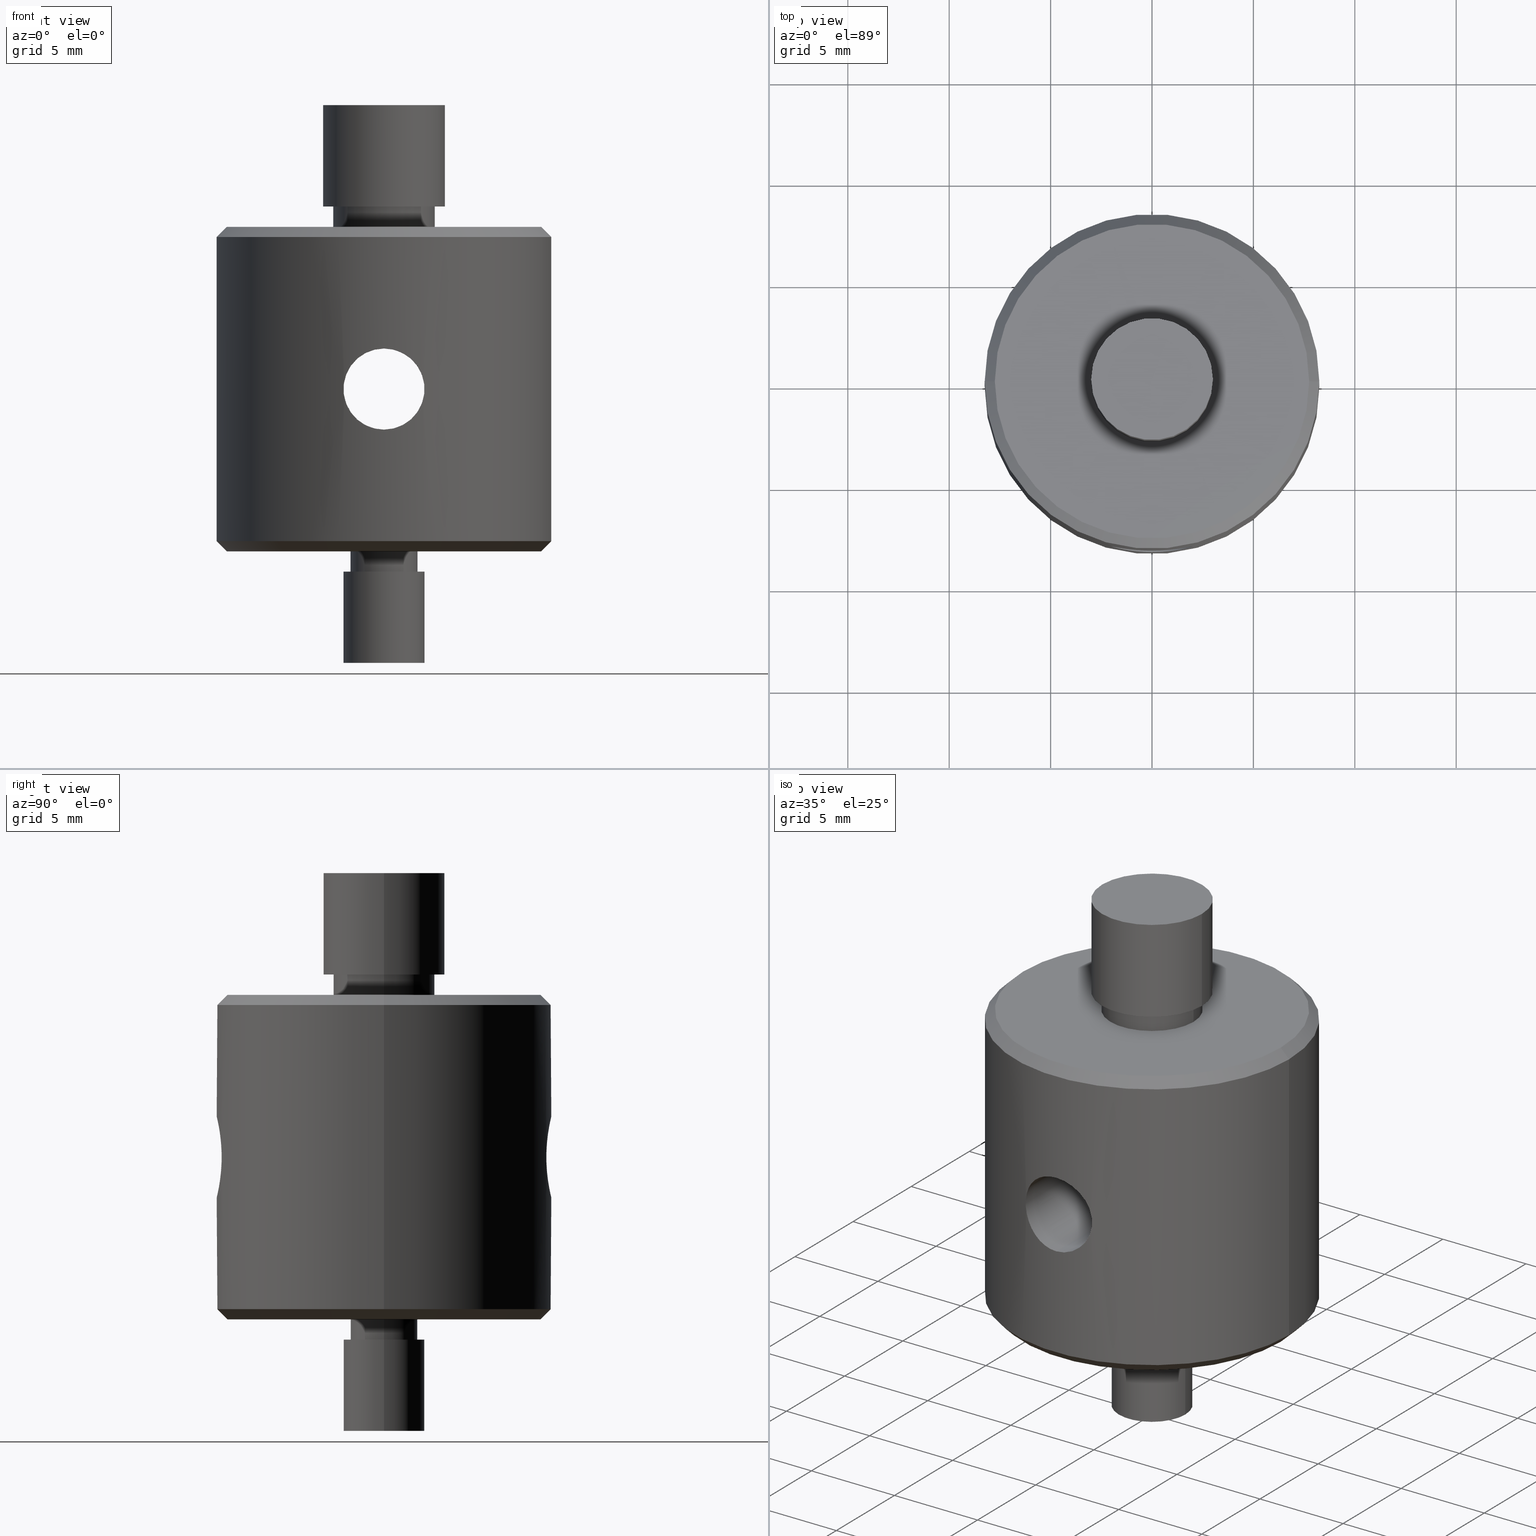
[diagram: canonical four-view strip — front | top / right | iso, engineering-drawing reading convention]
A machine part, canonical four-view strip (front | top / right | iso — engineering-drawing reading convention). The complete STEP part file that produces these views, byte-faithful:
ISO-10303-21;
HEADER;
FILE_DESCRIPTION (( 'STEP AP203' ),
    '1' );
FILE_NAME ('07SRA-3.STEP',
    '2016-04-25T06:19:49',
    ( '' ),
    ( '' ),
    'SwSTEP 2.0',
    'SolidWorks 2016',
    '' );
FILE_SCHEMA (( 'CONFIG_CONTROL_DESIGN' ));
ENDSEC;

DATA;
#1 =( GEOMETRIC_REPRESENTATION_CONTEXT ( 3 ) GLOBAL_UNCERTAINTY_ASSIGNED_CONTEXT ( ( #201 ) ) GLOBAL_UNIT_ASSIGNED_CONTEXT ( ( #126, #609, #417 ) ) REPRESENTATION_CONTEXT ( 'NONE', 'WORKASPACE' ) );
#2 = CARTESIAN_POINT ( 'NONE',  ( -0.1308165397492921700, -8.250000000000001800, -2.000000000000000900 ) ) ;
#3 = DIRECTION ( 'NONE',  ( -0.0000000000000000000, -0.0000000000000000000, 1.000000000000000000 ) ) ;
#4 = CARTESIAN_POINT ( 'NONE',  ( -1.935604370650708500, -8.019765173594350900, -0.5201874762982557900 ) ) ;
#5 = EDGE_CURVE ( 'NONE', #43, #248, #379, .T. ) ;
#6 = FACE_BOUND ( 'NONE', #394, .T. ) ;
#7 = CARTESIAN_POINT ( 'NONE',  ( -1.220416603986454100, -8.159968065346266300, 1.589852038569584200 ) ) ;
#8 = ORIENTED_EDGE ( 'NONE', *, *, #416, .T. ) ;
#9 = CARTESIAN_POINT ( 'NONE',  ( 0.0000000000000000000, 0.0000000000000000000, 8.000000000000000000 ) ) ;
#10 = EDGE_LOOP ( 'NONE', ( #561, #146, #382, #456 ) ) ;
#11 = CARTESIAN_POINT ( 'NONE',  ( -2.000045191572576500, 8.003894004411135300, 0.1312489192629629500 ) ) ;
#12 = DIRECTION ( 'NONE',  ( -1.000000000000000000, 0.0000000000000000000, 0.0000000000000000000 ) ) ;
#13 = CARTESIAN_POINT ( 'NONE',  ( -0.5211225312989512500, -8.234533888799106200, -1.935374489079428200 ) ) ;
#14 = CARTESIAN_POINT ( 'NONE',  ( 0.0000000000000000000, 0.0000000000000000000, 8.000000000000000000 ) ) ;
#15 = SHAPE_DEFINITION_REPRESENTATION ( #232, #699 ) ;
#16 = AXIS2_PLACEMENT_3D ( 'NONE', #130, #202, #132 ) ;
#17 = ORIENTED_EDGE ( 'NONE', *, *, #661, .F. ) ;
#18 = CARTESIAN_POINT ( 'NONE',  ( 2.500000000000000000, 3.061616997868383100E-016, 8.000000000000000000 ) ) ;
#19 = ORIENTED_EDGE ( 'NONE', *, *, #650, .T. ) ;
#20 = EDGE_CURVE ( 'NONE', #484, #277, #220, .T. ) ;
#21 = CARTESIAN_POINT ( 'NONE',  ( -6.789005360349728400E-017, 8.250000000000000000, 2.000000000000000000 ) ) ;
#22 = DIRECTION ( 'NONE',  ( 1.000000000000000000, 0.0000000000000000000, 0.0000000000000000000 ) ) ;
#23 = VECTOR ( 'NONE', #558, 1000.000000000000000 ) ;
#24 = CARTESIAN_POINT ( 'NONE',  ( 0.0000000000000000000, 0.0000000000000000000, 8.000000000000000000 ) ) ;
#25 = EDGE_LOOP ( 'NONE', ( #211, #389, #585, #360 ) ) ;
#26 = DIRECTION ( 'NONE',  ( -0.0000000000000000000, -0.0000000000000000000, -1.000000000000000000 ) ) ;
#27 = AXIS2_PLACEMENT_3D ( 'NONE', #545, #186, #721 ) ;
#28 = CARTESIAN_POINT ( 'NONE',  ( 1.986918607695745900, 8.007206264713762100, -0.2632750207901880000 ) ) ;
#29 = DIRECTION ( 'NONE',  ( 0.0000000000000000000, 0.0000000000000000000, 1.000000000000000000 ) ) ;
#30 = LINE ( 'NONE', #231, #402 ) ;
#31 = APPLICATION_CONTEXT ( 'configuration controlled 3d designs of mechanical parts and assemblies' ) ;
#32 = EDGE_CURVE ( 'NONE', #82, #43, #709, .T. ) ;
#33 = ORIENTED_EDGE ( 'NONE', *, *, #54, .F. ) ;
#34 = ADVANCED_FACE ( 'NONE', ( #359 ), #208, .T. ) ;
#35 = CARTESIAN_POINT ( 'NONE',  ( 1.897658194821841200, 8.028951604041024500, -0.6451074378026309100 ) ) ;
#36 = APPROVAL_STATUS ( 'not_yet_approved' ) ;
#37 = CC_DESIGN_APPROVAL ( #563, ( #553 ) ) ;
#38 = ADVANCED_FACE ( 'NONE', ( #560 ), #504, .T. ) ;
#39 = LOCAL_TIME ( 14, 19, 49.00000000000000000, #164 ) ;
#40 = CARTESIAN_POINT ( 'NONE',  ( 1.936141588103510000, -8.019634998458533600, 0.5181599248321968600 ) ) ;
#41 = CIRCLE ( 'NONE', #67, 1.650000000000000100 ) ;
#42 = VERTEX_POINT ( 'NONE', #437 ) ;
#43 = VERTEX_POINT ( 'NONE', #145 ) ;
#44 = CARTESIAN_POINT ( 'NONE',  ( 1.009530896751481100, -8.191567199673246000, 1.746084158701253200 ) ) ;
#45 = DIRECTION ( 'NONE',  ( -0.0000000000000000000, -0.0000000000000000000, -1.000000000000000000 ) ) ;
#46 = CARTESIAN_POINT ( 'NONE',  ( 8.250000000000000000, 0.0000000000000000000, -7.499999999999996400 ) ) ;
#47 = CIRCLE ( 'NONE', #280, 2.500000000000000000 ) ;
#48 = CYLINDRICAL_SURFACE ( 'NONE', #427, 2.500000000000000000 ) ;
#49 = VECTOR ( 'NONE', #669, 1000.000000000000000 ) ;
#50 = VERTEX_POINT ( 'NONE', #676 ) ;
#51 = AXIS2_PLACEMENT_3D ( 'NONE', #14, #498, #22 ) ;
#52 = DIRECTION ( 'NONE',  ( -0.0000000000000000000, -0.0000000000000000000, 1.000000000000000000 ) ) ;
#53 = CARTESIAN_POINT ( 'NONE',  ( -1.321223466088915300, -8.144060661153183400, -1.507167060968729300 ) ) ;
#54 = EDGE_CURVE ( 'NONE', #457, #426, #160, .T. ) ;
#55 = LOCAL_TIME ( 14, 19, 49.00000000000000000, #218 ) ;
#56 = CARTESIAN_POINT ( 'NONE',  ( 0.0000000000000000000, -10.00000000000000000, 0.0000000000000000000 ) ) ;
#57 = CARTESIAN_POINT ( 'NONE',  ( -1.505833281658624000, 8.111949852566528600, -1.322673550575946600 ) ) ;
#58 = CIRCLE ( 'NONE', #468, 2.000000000000000000 ) ;
#59 = CARTESIAN_POINT ( 'NONE',  ( -3.000000000000000400, 3.673940397442060400E-016, 8.000000000000000000 ) ) ;
#60 = VERTEX_POINT ( 'NONE', #383 ) ;
#61 = CARTESIAN_POINT ( 'NONE',  ( -1.734485429178346700, 8.065947410585693000, -1.004220271036169600 ) ) ;
#62 = DIRECTION ( 'NONE',  ( -0.0000000000000000000, -0.0000000000000000000, 1.000000000000000000 ) ) ;
#63 = CARTESIAN_POINT ( 'NONE',  ( -1.897658194821841200, -8.028951604041024500, -0.6451074378026309100 ) ) ;
#64 = AXIS2_PLACEMENT_3D ( 'NONE', #240, #62, #245 ) ;
#65 = CYLINDRICAL_SURFACE ( 'NONE', #396, 8.250000000000000000 ) ;
#66 = EDGE_LOOP ( 'NONE', ( #168, #300, #236, #247 ) ) ;
#67 = AXIS2_PLACEMENT_3D ( 'NONE', #623, #173, #224 ) ;
#68 = CARTESIAN_POINT ( 'NONE',  ( -0.2633971679137698800, 8.246803913401407700, 1.986932804278705100 ) ) ;
#69 = DATE_AND_TIME ( #500, #93 ) ;
#70 = CC_DESIGN_APPROVAL ( #111, ( #588 ) ) ;
#71 = CARTESIAN_POINT ( 'NONE',  ( 0.0000000000000000000, 0.0000000000000000000, -13.50000000000000000 ) ) ;
#72 = EDGE_LOOP ( 'NONE', ( #237, #614, #686, #370 ) ) ;
#73 = CARTESIAN_POINT ( 'NONE',  ( 0.0000000000000000000, -10.00000000000000000, 0.0000000000000000000 ) ) ;
#74 = CARTESIAN_POINT ( 'NONE',  ( 0.1326415266041785500, -8.250000000000000000, 1.999999999999999600 ) ) ;
#75 = AXIS2_PLACEMENT_3D ( 'NONE', #507, #137, #642 ) ;
#76 = CARTESIAN_POINT ( 'NONE',  ( 0.0000000000000000000, 0.0000000000000000000, -7.499999999999996400 ) ) ;
#77 = APPROVAL_PERSON_ORGANIZATION ( #226, #563, #572 ) ;
#78 = CARTESIAN_POINT ( 'NONE',  ( 0.5193570997923324700, 8.234635984631101000, 1.935806336850731900 ) ) ;
#79 = DIRECTION ( 'NONE',  ( 1.000000000000000000, 0.0000000000000000000, 0.0000000000000000000 ) ) ;
#80 = FACE_BOUND ( 'NONE', #326, .T. ) ;
#81 = CARTESIAN_POINT ( 'NONE',  ( 1.321366810000156500, -8.144031804710421000, -1.506980075174842300 ) ) ;
#82 = VERTEX_POINT ( 'NONE', #512 ) ;
#83 = CARTESIAN_POINT ( 'NONE',  ( 0.8873435543799543800, 8.203037833527066200, -1.797140462901066500 ) ) ;
#84 = ORIENTED_EDGE ( 'NONE', *, *, #305, .F. ) ;
#85 = EDGE_CURVE ( 'NONE', #60, #223, #41, .T. ) ;
#86 = CARTESIAN_POINT ( 'NONE',  ( 0.0000000000000000000, 0.0000000000000000000, -9.000000000000001800 ) ) ;
#87 = ADVANCED_FACE ( 'NONE', ( #297 ), #622, .T. ) ;
#88 = ORIENTED_EDGE ( 'NONE', *, *, #708, .F. ) ;
#89 = CARTESIAN_POINT ( 'NONE',  ( 0.0000000000000000000, 0.0000000000000000000, -9.000000000000001800 ) ) ;
#90 = CARTESIAN_POINT ( 'NONE',  ( 2.500000000000000000, 3.061616997868383100E-016, 9.000000000000001800 ) ) ;
#91 = ADVANCED_FACE ( 'NONE', ( #350 ), #294, .T. ) ;
#92 = PLANE ( 'NONE',  #447 ) ;
#93 = LOCAL_TIME ( 14, 19, 49.00000000000000000, #438 ) ;
#94 = DIRECTION ( 'NONE',  ( 1.000000000000000000, 0.0000000000000000000, 0.0000000000000000000 ) ) ;
#95 = FACE_OUTER_BOUND ( 'NONE', #228, .T. ) ;
#96 = ADVANCED_FACE ( 'NONE', ( #157, #6 ), #92, .T. ) ;
#97 = CARTESIAN_POINT ( 'NONE',  ( 0.0000000000000000000, 0.0000000000000000000, 14.00000000000000000 ) ) ;
#98 = FACE_OUTER_BOUND ( 'NONE', #133, .T. ) ;
#99 = ORIENTED_EDGE ( 'NONE', *, *, #697, .F. ) ;
#100 = VERTEX_POINT ( 'NONE', #534 ) ;
#101 = ORIENTED_EDGE ( 'NONE', *, *, #501, .F. ) ;
#102 = AXIS2_PLACEMENT_3D ( 'NONE', #524, #586, #706 ) ;
#103 = DIRECTION ( 'NONE',  ( -0.0000000000000000000, 1.000000000000000000, -0.0000000000000000000 ) ) ;
#104 = CARTESIAN_POINT ( 'NONE',  ( 7.749999999999989300, 9.797174393178819700E-016, 8.000000000000000000 ) ) ;
#105 = LINE ( 'NONE', #149, #683 ) ;
#106 = ORIENTED_EDGE ( 'NONE', *, *, #166, .T. ) ;
#107 = DIRECTION ( 'NONE',  ( -1.000000000000000000, 0.0000000000000000000, 0.0000000000000000000 ) ) ;
#108 = CARTESIAN_POINT ( 'NONE',  ( -0.8869395704203337800, 8.203076758833363500, -1.797314436934732900 ) ) ;
#109 = VERTEX_POINT ( 'NONE', #356 ) ;
#110 = ORIENTED_EDGE ( 'NONE', *, *, #199, .F. ) ;
#111 = APPROVAL ( #36, 'UNSPECIFIED' ) ;
#112 = PERSON ( 'UNSPECIFIED', 'UNSPECIFIED', 'UNSPECIFIED', ('UNSPECIFIED'), ('UNSPECIFIED'), ('UNSPECIFIED') ) ;
#113 = CARTESIAN_POINT ( 'NONE',  ( 0.0000000000000000000, 0.0000000000000000000, 8.000000000000000000 ) ) ;
#114 = CARTESIAN_POINT ( 'NONE',  ( -1.987161606794385400, 8.007145465530605600, 0.2613861231367247700 ) ) ;
#115 = AXIS2_PLACEMENT_3D ( 'NONE', #24, #397, #565 ) ;
#116 = CARTESIAN_POINT ( 'NONE',  ( 1.650000000000000100, 0.0000000000000000000, -9.000000000000001800 ) ) ;
#117 = CARTESIAN_POINT ( 'NONE',  ( -0.1326771134377834100, -8.250000000000000000, 2.000000000000000000 ) ) ;
#118 = CIRCLE ( 'NONE', #388, 8.250000000000000000 ) ;
#119 = CARTESIAN_POINT ( 'NONE',  ( 0.0000000000000000000, 0.0000000000000000000, -8.000000000000000000 ) ) ;
#120 = ORIENTED_EDGE ( 'NONE', *, *, #5, .F. ) ;
#121 = EDGE_LOOP ( 'NONE', ( #760, #464, #579, #301 ) ) ;
#122 = ORIENTED_EDGE ( 'NONE', *, *, #271, .F. ) ;
#123 = DIRECTION ( 'NONE',  ( 0.0000000000000000000, 0.0000000000000000000, 1.000000000000000000 ) ) ;
#124 = CC_DESIGN_APPROVAL ( #641, ( #296 ) ) ;
#125 = DIRECTION ( 'NONE',  ( 0.0000000000000000000, 0.0000000000000000000, 1.000000000000000000 ) ) ;
#126 =( LENGTH_UNIT ( ) NAMED_UNIT ( * ) SI_UNIT ( .MILLI., .METRE. ) );
#127 = CARTESIAN_POINT ( 'NONE',  ( -6.789005360349728400E-017, 8.250000000000000000, 2.000000000000000000 ) ) ;
#128 = AXIS2_PLACEMENT_3D ( 'NONE', #322, #491, #190 ) ;
#129 = CIRCLE ( 'NONE', #714, 3.000000000000000400 ) ;
#130 = CARTESIAN_POINT ( 'NONE',  ( 0.0000000000000000000, 0.0000000000000000000, -8.000000000000000000 ) ) ;
#131 = VERTEX_POINT ( 'NONE', #104 ) ;
#132 = DIRECTION ( 'NONE',  ( -1.000000000000000000, 0.0000000000000000000, -0.0000000000000000000 ) ) ;
#133 = EDGE_LOOP ( 'NONE', ( #741, #341, #143, #101 ) ) ;
#134 = EDGE_CURVE ( 'NONE', #551, #131, #495, .T. ) ;
#135 = DIRECTION ( 'NONE',  ( 0.0000000000000000000, 0.0000000000000000000, -1.000000000000000000 ) ) ;
#136 = CARTESIAN_POINT ( 'NONE',  ( -0.6485373955294846400, 8.225357481663911200, 1.896415006476869200 ) ) ;
#137 = DIRECTION ( 'NONE',  ( 0.0000000000000000000, 0.0000000000000000000, 1.000000000000000000 ) ) ;
#138 = CARTESIAN_POINT ( 'NONE',  ( 0.0000000000000000000, 0.0000000000000000000, 9.000000000000001800 ) ) ;
#139 = CALENDAR_DATE ( 2016, 25, 4 ) ;
#140 = CARTESIAN_POINT ( 'NONE',  ( 1.505833281658624000, -8.111949852566528600, -1.322673550575946600 ) ) ;
#141 = FACE_OUTER_BOUND ( 'NONE', #195, .T. ) ;
#142 = CIRCLE ( 'NONE', #411, 7.749999999999991100 ) ;
#143 = ORIENTED_EDGE ( 'NONE', *, *, #380, .T. ) ;
#144 = ORIENTED_EDGE ( 'NONE', *, *, #750, .T. ) ;
#145 = CARTESIAN_POINT ( 'NONE',  ( -8.250000000000000000, 1.010333609296566500E-015, -7.499999999999996400 ) ) ;
#146 = ORIENTED_EDGE ( 'NONE', *, *, #134, .F. ) ;
#147 = DIRECTION ( 'NONE',  ( -1.000000000000000000, 0.0000000000000000000, 0.0000000000000000000 ) ) ;
#148 = PERSON_AND_ORGANIZATION_ROLE ( 'creator' ) ;
#149 = CARTESIAN_POINT ( 'NONE',  ( -2.000000000000000000, 0.0000000000000000000, -8.000000000000000000 ) ) ;
#150 = AXIS2_PLACEMENT_3D ( 'NONE', #73, #377, #378 ) ;
#151 = CARTESIAN_POINT ( 'NONE',  ( 1.599357376057809300, 8.095676499416024200, -1.229142779217262900 ) ) ;
#152 = CARTESIAN_POINT ( 'NONE',  ( 1.746564404702779300, 8.063665092118787600, -1.009254032915539300 ) ) ;
#153 = CARTESIAN_POINT ( 'NONE',  ( 0.0000000000000000000, 0.0000000000000000000, 0.0000000000000000000 ) ) ;
#154 = AXIS2_PLACEMENT_3D ( 'NONE', #76, #325, #694 ) ;
#155 = CARTESIAN_POINT ( 'NONE',  ( 0.0000000000000000000, 0.0000000000000000000, 9.000000000000001800 ) ) ;
#156 = CYLINDRICAL_SURFACE ( 'NONE', #162, 2.500000000000000000 ) ;
#157 = FACE_OUTER_BOUND ( 'NONE', #675, .T. ) ;
#158 = ORIENTED_EDGE ( 'NONE', *, *, #363, .F. ) ;
#159 = ORIENTED_EDGE ( 'NONE', *, *, #282, .T. ) ;
#160 = B_SPLINE_CURVE_WITH_KNOTS ( 'NONE', 3,
 ( #567, #571, #385, #163, #522, #203, #81, #140, #562, #281, #259, #330, #629, #342, #628, #40, #754, #398, #268, #264, #44, #735, #742, #200, #74, #502 ),
 .UNSPECIFIED., .F., .F.,
 ( 4, 2, 2, 2, 2, 2, 2, 2, 2, 2, 2, 2, 4 ),
 ( 0.006276366173216329500, 0.007060701512947540300, 0.007452869182813145700, 0.007845036852678751900, 0.008237204522544356400, 0.008629372192409962700, 0.009413707532141171700, 0.009805875202006778000, 0.01019804287187238200, 0.01098237821160359300, 0.01176671355133480600, 0.01215888122120041000, 0.01255104889106601500 ),
 .UNSPECIFIED. ) ;
#161 = PERSON_AND_ORGANIZATION_ROLE ( 'design_supplier' ) ;
#162 = AXIS2_PLACEMENT_3D ( 'NONE', #555, #258, #251 ) ;
#163 = CARTESIAN_POINT ( 'NONE',  ( 0.8869395704203337800, -8.203076758833363500, -1.797314436934732900 ) ) ;
#164 = COORDINATED_UNIVERSAL_TIME_OFFSET ( 8, 0, .AHEAD. ) ;
#165 = ORIENTED_EDGE ( 'NONE', *, *, #380, .F. ) ;
#166 = EDGE_CURVE ( 'NONE', #462, #42, #308, .T. ) ;
#167 = CARTESIAN_POINT ( 'NONE',  ( 0.0000000000000000000, 0.0000000000000000000, 8.000000000000000000 ) ) ;
#168 = ORIENTED_EDGE ( 'NONE', *, *, #257, .T. ) ;
#169 = ORIENTED_EDGE ( 'NONE', *, *, #592, .T. ) ;
#170 = DIRECTION ( 'NONE',  ( 1.000000000000000000, 0.0000000000000000000, 0.0000000000000000000 ) ) ;
#171 = DIRECTION ( 'NONE',  ( 0.0000000000000000000, 0.0000000000000000000, 1.000000000000000000 ) ) ;
#172 = FACE_BOUND ( 'NONE', #312, .T. ) ;
#173 = DIRECTION ( 'NONE',  ( 0.0000000000000000000, 0.0000000000000000000, -1.000000000000000000 ) ) ;
#174 = VECTOR ( 'NONE', #618, 1000.000000000000000 ) ;
#175 = AXIS2_PLACEMENT_3D ( 'NONE', #477, #291, #107 ) ;
#176 = VERTEX_POINT ( 'NONE', #46 ) ;
#177 = CARTESIAN_POINT ( 'NONE',  ( 0.0000000000000000000, 0.0000000000000000000, -8.000000000000000000 ) ) ;
#178 = CARTESIAN_POINT ( 'NONE',  ( -0.5193570997923324700, -8.234635984631101000, 1.935806336850731900 ) ) ;
#179 = EDGE_CURVE ( 'NONE', #593, #719, #318, .T. ) ;
#180 = CARTESIAN_POINT ( 'NONE',  ( 3.000000000000000400, 0.0000000000000000000, 14.00000000000000000 ) ) ;
#181 = CARTESIAN_POINT ( 'NONE',  ( -1.003367067051843800, -8.189490218781173800, 1.735021821357147600 ) ) ;
#182 = CARTESIAN_POINT ( 'NONE',  ( -1.897368781442408500, 8.029017936759030900, 0.6457941285481596500 ) ) ;
#183 = ORIENTED_EDGE ( 'NONE', *, *, #399, .F. ) ;
#184 = ORIENTED_EDGE ( 'NONE', *, *, #327, .F. ) ;
#185 = CARTESIAN_POINT ( 'NONE',  ( -0.2615629039225235700, 8.250000000000000000, -2.000000000000000400 ) ) ;
#186 = DIRECTION ( 'NONE',  ( 0.0000000000000000000, 0.0000000000000000000, -1.000000000000000000 ) ) ;
#187 = CARTESIAN_POINT ( 'NONE',  ( -1.599357376057809300, -8.095676499416024200, -1.229142779217262900 ) ) ;
#188 = AXIS2_PLACEMENT_3D ( 'NONE', #113, #246, #539 ) ;
#189 = DIRECTION ( 'NONE',  ( 0.0000000000000000000, 0.0000000000000000000, -1.000000000000000000 ) ) ;
#190 = DIRECTION ( 'NONE',  ( -1.000000000000000000, 0.0000000000000000000, 0.0000000000000000000 ) ) ;
#191 = CIRCLE ( 'NONE', #497, 1.650000000000000100 ) ;
#192 = FACE_OUTER_BOUND ( 'NONE', #517, .T. ) ;
#193 = ORIENTED_EDGE ( 'NONE', *, *, #20, .F. ) ;
#194 = AXIS2_PLACEMENT_3D ( 'NONE', #292, #467, #409 ) ;
#195 = EDGE_LOOP ( 'NONE', ( #540, #486 ) ) ;
#196 = CARTESIAN_POINT ( 'NONE',  ( -1.650000000000000100, 2.020667218593133000E-016, -8.000000000000000000 ) ) ;
#197 = ORIENTED_EDGE ( 'NONE', *, *, #20, .T. ) ;
#198 = DIRECTION ( 'NONE',  ( -0.0000000000000000000, -0.0000000000000000000, -1.000000000000000000 ) ) ;
#199 = EDGE_CURVE ( 'NONE', #587, #758, #660, .T. ) ;
#200 = CARTESIAN_POINT ( 'NONE',  ( 0.2633971679137698800, -8.246803913401407700, 1.986932804278705100 ) ) ;
#201 = UNCERTAINTY_MEASURE_WITH_UNIT (LENGTH_MEASURE( 1.000000000000000100E-005 ), #126, 'distance_accuracy_value', 'NONE');
#202 = DIRECTION ( 'NONE',  ( 0.0000000000000000000, 0.0000000000000000000, -1.000000000000000000 ) ) ;
#203 = CARTESIAN_POINT ( 'NONE',  ( 1.221030223150371400, -8.159876887627760300, -1.589387696022922700 ) ) ;
#204 = DIRECTION ( 'NONE',  ( 0.0000000000000000000, 0.0000000000000000000, -1.000000000000000000 ) ) ;
#205 = FACE_OUTER_BOUND ( 'NONE', #475, .T. ) ;
#206 = PRODUCT_RELATED_PRODUCT_CATEGORY ( 'detail', '', ( #488 ) ) ;
#207 = CARTESIAN_POINT ( 'NONE',  ( 1.004520203861529100, 8.189343423344858800, -1.734320818487681500 ) ) ;
#208 = CONICAL_SURFACE ( 'NONE', #154, 8.250000000000000000, 0.7853981633974533900 ) ;
#209 = DIRECTION ( 'NONE',  ( 1.000000000000000000, 0.0000000000000000000, 0.0000000000000000000 ) ) ;
#210 = ORIENTED_EDGE ( 'NONE', *, *, #501, .T. ) ;
#211 = ORIENTED_EDGE ( 'NONE', *, *, #442, .F. ) ;
#212 = CARTESIAN_POINT ( 'NONE',  ( 0.2635999258944435300, 8.246795264675656200, -1.986896621537046000 ) ) ;
#213 = ADVANCED_FACE ( 'NONE', ( #339 ), #454, .T. ) ;
#214 = DIRECTION ( 'NONE',  ( 0.0000000000000000000, 0.0000000000000000000, 1.000000000000000000 ) ) ;
#215 = DIRECTION ( 'NONE',  ( -0.0000000000000000000, -0.0000000000000000000, -1.000000000000000000 ) ) ;
#216 = CC_DESIGN_PERSON_AND_ORGANIZATION_ASSIGNMENT ( #557, #148, ( #588 ) ) ;
#217 = PERSON_AND_ORGANIZATION_ROLE ( 'design_owner' ) ;
#218 = COORDINATED_UNIVERSAL_TIME_OFFSET ( 8, 0, .AHEAD. ) ;
#219 = FACE_OUTER_BOUND ( 'NONE', #121, .T. ) ;
#220 = LINE ( 'NONE', #90, #521 ) ;
#221 = ADVANCED_FACE ( 'NONE', ( #431 ), #613, .T. ) ;
#222 = ORIENTED_EDGE ( 'NONE', *, *, #282, .F. ) ;
#223 = VERTEX_POINT ( 'NONE', #470 ) ;
#224 = DIRECTION ( 'NONE',  ( -1.000000000000000000, 0.0000000000000000000, 0.0000000000000000000 ) ) ;
#225 = DIRECTION ( 'NONE',  ( 1.000000000000000000, 0.0000000000000000000, 0.0000000000000000000 ) ) ;
#226 = PERSON_AND_ORGANIZATION ( #112, #284 ) ;
#227 = AXIS2_PLACEMENT_3D ( 'NONE', #496, #324, #725 ) ;
#228 = EDGE_LOOP ( 'NONE', ( #290, #654, #159, #643 ) ) ;
#229 = CARTESIAN_POINT ( 'NONE',  ( -8.250000000000000000, 1.010333609296566500E-015, 7.499999999999998200 ) ) ;
#230 = EDGE_CURVE ( 'NONE', #625, #277, #748, .T. ) ;
#231 = CARTESIAN_POINT ( 'NONE',  ( 2.000000000000000000, 2.449293598294706400E-016, -8.000000000000000000 ) ) ;
#232 = PRODUCT_DEFINITION_SHAPE ( 'NONE', 'NONE',  #553 ) ;
#233 = APPROVAL_PERSON_ORGANIZATION ( #583, #641, #687 ) ;
#234 = CARTESIAN_POINT ( 'NONE',  ( -0.8886708092414188400, -8.202897855306337900, 1.796506368153792900 ) ) ;
#235 = FACE_OUTER_BOUND ( 'NONE', #66, .T. ) ;
#236 = ORIENTED_EDGE ( 'NONE', *, *, #271, .T. ) ;
#237 = ORIENTED_EDGE ( 'NONE', *, *, #724, .F. ) ;
#238 = DIRECTION ( 'NONE',  ( -1.000000000000000000, 0.0000000000000000000, -0.0000000000000000000 ) ) ;
#239 = CARTESIAN_POINT ( 'NONE',  ( -1.747129177818576000, -8.063531605375777300, 1.007640096485658400 ) ) ;
#240 = CARTESIAN_POINT ( 'NONE',  ( 0.0000000000000000000, 0.0000000000000000000, -7.499999999999996400 ) ) ;
#241 = CARTESIAN_POINT ( 'NONE',  ( -1.231581452474026900, 8.159680445255538900, 1.597060228483784700 ) ) ;
#242 = DIRECTION ( 'NONE',  ( 1.000000000000000000, 0.0000000000000000000, 0.0000000000000000000 ) ) ;
#243 = CARTESIAN_POINT ( 'NONE',  ( 2.449308039802920400E-016, -8.250000000000000000, -2.000000000000000000 ) ) ;
#244 = DATE_AND_TIME ( #139, #39 ) ;
#245 = DIRECTION ( 'NONE',  ( 1.000000000000000000, 0.0000000000000000000, 0.0000000000000000000 ) ) ;
#246 = DIRECTION ( 'NONE',  ( 0.0000000000000000000, 0.0000000000000000000, 1.000000000000000000 ) ) ;
#247 = ORIENTED_EDGE ( 'NONE', *, *, #416, .F. ) ;
#248 = VERTEX_POINT ( 'NONE', #229 ) ;
#249 = CARTESIAN_POINT ( 'NONE',  ( 8.250000000000000000, 0.0000000000000000000, -7.499999999999996400 ) ) ;
#250 = DIRECTION ( 'NONE',  ( 0.0000000000000000000, 0.0000000000000000000, 1.000000000000000000 ) ) ;
#251 = DIRECTION ( 'NONE',  ( -1.000000000000000000, 0.0000000000000000000, 0.0000000000000000000 ) ) ;
#252 = CC_DESIGN_PERSON_AND_ORGANIZATION_ASSIGNMENT ( #544, #161, ( #588 ) ) ;
#253 = CARTESIAN_POINT ( 'NONE',  ( -7.749999999999989300, 0.0000000000000000000, 8.000000000000000000 ) ) ;
#254 = LOCAL_TIME ( 14, 19, 49.00000000000000000, #576 ) ;
#255 = PLANE ( 'NONE',  #478 ) ;
#256 = ORIENTED_EDGE ( 'NONE', *, *, #673, .T. ) ;
#257 = EDGE_CURVE ( 'NONE', #426, #457, #621, .T. ) ;
#258 = DIRECTION ( 'NONE',  ( 0.0000000000000000000, 0.0000000000000000000, -1.000000000000000000 ) ) ;
#259 = CARTESIAN_POINT ( 'NONE',  ( 1.796101587691693500, -8.052279829401907600, -0.8895820937560504600 ) ) ;
#260 = CC_DESIGN_SECURITY_CLASSIFICATION ( #296, ( #588 ) ) ;
#261 = DIRECTION ( 'NONE',  ( -0.0000000000000000000, -0.0000000000000000000, 1.000000000000000000 ) ) ;
#262 = CIRCLE ( 'NONE', #175, 8.250000000000000000 ) ;
#263 = PERSON_AND_ORGANIZATION_ROLE ( 'classification_officer' ) ;
#264 = CARTESIAN_POINT ( 'NONE',  ( 1.231581452474026900, -8.159680445255538900, 1.597060228483784700 ) ) ;
#265 = EDGE_LOOP ( 'NONE', ( #184, #310, #165, #328 ) ) ;
#266 = ORIENTED_EDGE ( 'NONE', *, *, #556, .T. ) ;
#267 = AXIS2_PLACEMENT_3D ( 'NONE', #533, #298, #302 ) ;
#268 = CARTESIAN_POINT ( 'NONE',  ( 1.598501874800889500, -8.095799503385800100, 1.229709723365947300 ) ) ;
#269 = CARTESIAN_POINT ( 'NONE',  ( 0.5211225312989512500, 8.234533888799106200, -1.935374489079428200 ) ) ;
#270 = MECHANICAL_CONTEXT ( 'NONE', #31, 'mechanical' ) ;
#271 = EDGE_CURVE ( 'NONE', #278, #309, #316, .T. ) ;
#272 = PERSON_AND_ORGANIZATION ( #112, #284 ) ;
#273 = CARTESIAN_POINT ( 'NONE',  ( 7.749999999999991100, 0.0000000000000000000, -8.000000000000000000 ) ) ;
#274 = FACE_OUTER_BOUND ( 'NONE', #414, .T. ) ;
#275 = ADVANCED_FACE ( 'NONE', ( #529 ), #559, .T. ) ;
#276 = DIRECTION ( 'NONE',  ( 0.0000000000000000000, 0.0000000000000000000, 1.000000000000000000 ) ) ;
#277 = VERTEX_POINT ( 'NONE', #18 ) ;
#278 = VERTEX_POINT ( 'NONE', #606 ) ;
#279 = CARTESIAN_POINT ( 'NONE',  ( 2.449308039802920400E-016, -8.250000000000000000, -2.000000000000000000 ) ) ;
#280 = AXIS2_PLACEMENT_3D ( 'NONE', #384, #616, #439 ) ;
#281 = CARTESIAN_POINT ( 'NONE',  ( 1.734485429178346700, -8.065947410585693000, -1.004220271036169600 ) ) ;
#282 = EDGE_CURVE ( 'NONE', #695, #176, #369, .T. ) ;
#283 = CARTESIAN_POINT ( 'NONE',  ( 2.000000000000000000, 2.449293598294706400E-016, -9.000000000000001800 ) ) ;
#284 = ORGANIZATION ( 'UNSPECIFIED', 'UNSPECIFIED', '' ) ;
#285 = CARTESIAN_POINT ( 'NONE',  ( 0.0000000000000000000, 0.0000000000000000000, 8.000000000000000000 ) ) ;
#286 = LINE ( 'NONE', #364, #740 ) ;
#287 = ORIENTED_EDGE ( 'NONE', *, *, #257, .F. ) ;
#288 = ORIENTED_EDGE ( 'NONE', *, *, #399, .T. ) ;
#289 = ADVANCED_FACE ( 'NONE', ( #332 ), #156, .T. ) ;
#290 = ORIENTED_EDGE ( 'NONE', *, *, #32, .F. ) ;
#291 = DIRECTION ( 'NONE',  ( -0.0000000000000000000, -0.0000000000000000000, 1.000000000000000000 ) ) ;
#292 = CARTESIAN_POINT ( 'NONE',  ( 0.0000000000000000000, 0.0000000000000000000, -8.000000000000000000 ) ) ;
#293 = DIRECTION ( 'NONE',  ( -1.000000000000000000, 0.0000000000000000000, 0.0000000000000000000 ) ) ;
#294 = PLANE ( 'NONE',  #604 ) ;
#295 = CIRCLE ( 'NONE', #670, 2.500000000000000000 ) ;
#296 = SECURITY_CLASSIFICATION ( '', '', #580 ) ;
#297 = FACE_OUTER_BOUND ( 'NONE', #664, .T. ) ;
#298 = DIRECTION ( 'NONE',  ( 0.0000000000000000000, 0.0000000000000000000, 1.000000000000000000 ) ) ;
#299 = DIRECTION ( 'NONE',  ( 0.0000000000000000000, 0.0000000000000000000, 1.000000000000000000 ) ) ;
#300 = ORIENTED_EDGE ( 'NONE', *, *, #708, .T. ) ;
#301 = ORIENTED_EDGE ( 'NONE', *, *, #556, .F. ) ;
#302 = DIRECTION ( 'NONE',  ( 1.000000000000000000, 0.0000000000000000000, -0.0000000000000000000 ) ) ;
#303 = CARTESIAN_POINT ( 'NONE',  ( -0.6466695324974537400, -8.225514424492038400, 1.897100275092082700 ) ) ;
#304 = DESIGN_CONTEXT ( 'detailed design', #334, 'design' ) ;
#305 = EDGE_CURVE ( 'NONE', #719, #593, #684, .T. ) ;
#306 = APPROVAL_DATE_TIME ( #680, #641 ) ;
#307 = LINE ( 'NONE', #59, #763 ) ;
#308 = CIRCLE ( 'NONE', #530, 2.000000000000000000 ) ;
#309 = VERTEX_POINT ( 'NONE', #375 ) ;
#310 = ORIENTED_EDGE ( 'NONE', *, *, #541, .T. ) ;
#311 = CARTESIAN_POINT ( 'NONE',  ( -1.947787641228585300, 8.017442781952535600, -0.5248544217563377900 ) ) ;
#312 = EDGE_LOOP ( 'NONE', ( #605, #387 ) ) ;
#313 = CARTESIAN_POINT ( 'NONE',  ( -1.598332908652791100, -8.095838505945714300, 1.229985968183118200 ) ) ;
#314 = CC_DESIGN_PERSON_AND_ORGANIZATION_ASSIGNMENT ( #272, #217, ( #488 ) ) ;
#315 = DIRECTION ( 'NONE',  ( -0.7071067811865536800, 0.0000000000000000000, -0.7071067811865414700 ) ) ;
#316 = B_SPLINE_CURVE_WITH_KNOTS ( 'NONE', 3,
 ( #713, #185, #362, #108, #656, #415, #658, #57, #418, #61, #480, #311, #365, #11, #114, #542, #182, #420, #599, #241, #423, #136, #552, #68, #732, #127 ),
 .UNSPECIFIED., .F., .F.,
 ( 4, 2, 2, 2, 2, 2, 2, 2, 2, 2, 2, 2, 4 ),
 ( 0.006276366173216329500, 0.007060701512947540300, 0.007452869182813145700, 0.007845036852678751900, 0.008237204522544356400, 0.008629372192409962700, 0.009413707532141171700, 0.009805875202006778000, 0.01019804287187238200, 0.01098237821160359300, 0.01176671355133480600, 0.01215888122120041000, 0.01255104889106601500 ),
 .UNSPECIFIED. ) ;
#317 = CIRCLE ( 'NONE', #707, 3.000000000000000400 ) ;
#318 = CIRCLE ( 'NONE', #573, 3.000000000000000400 ) ;
#319 = ORIENTED_EDGE ( 'NONE', *, *, #636, .F. ) ;
#320 = DIRECTION ( 'NONE',  ( -0.0000000000000000000, -0.0000000000000000000, -1.000000000000000000 ) ) ;
#321 = ORIENTED_EDGE ( 'NONE', *, *, #474, .F. ) ;
#322 = CARTESIAN_POINT ( 'NONE',  ( 0.0000000000000000000, 0.0000000000000000000, 7.499999999999998200 ) ) ;
#323 = AXIS2_PLACEMENT_3D ( 'NONE', #705, #653, #238 ) ;
#324 = DIRECTION ( 'NONE',  ( -0.0000000000000000000, -0.0000000000000000000, -1.000000000000000000 ) ) ;
#325 = DIRECTION ( 'NONE',  ( -0.0000000000000000000, -0.0000000000000000000, 1.000000000000000000 ) ) ;
#326 = EDGE_LOOP ( 'NONE', ( #319, #122 ) ) ;
#327 = EDGE_CURVE ( 'NONE', #131, #551, #393, .T. ) ;
#328 = ORIENTED_EDGE ( 'NONE', *, *, #519, .F. ) ;
#329 = APPROVAL_STATUS ( 'not_yet_approved' ) ;
#330 = CARTESIAN_POINT ( 'NONE',  ( 1.947787641228585300, -8.017442781952535600, -0.5248544217563377900 ) ) ;
#331 = PLANE ( 'NONE',  #323 ) ;
#332 = FACE_OUTER_BOUND ( 'NONE', #693, .T. ) ;
#333 = CARTESIAN_POINT ( 'NONE',  ( 2.449279156765281000E-016, 8.250000000000000000, -2.000000000000000000 ) ) ;
#334 = APPLICATION_CONTEXT ( 'configuration controlled 3d designs of mechanical parts and assemblies' ) ;
#335 = CARTESIAN_POINT ( 'NONE',  ( 1.747129177818576000, 8.063531605375777300, 1.007640096485658400 ) ) ;
#336 = DATE_TIME_ROLE ( 'creation_date' ) ;
#337 = ADVANCED_FACE ( 'NONE', ( #349 ), #403, .T. ) ;
#338 = LOCAL_TIME ( 14, 19, 49.00000000000000000, #392 ) ;
#339 = FACE_OUTER_BOUND ( 'NONE', #265, .T. ) ;
#340 = ADVANCED_FACE ( 'NONE', ( #80, #98 ), #65, .T. ) ;
#341 = ORIENTED_EDGE ( 'NONE', *, *, #5, .T. ) ;
#342 = CARTESIAN_POINT ( 'NONE',  ( 2.000045191572576500, -8.003894004411135300, 0.1312489192629629500 ) ) ;
#343 = ADVANCED_FACE ( 'NONE', ( #235 ), #612, .F. ) ;
#344 = CARTESIAN_POINT ( 'NONE',  ( -2.500000000000000000, 0.0000000000000000000, 9.000000000000001800 ) ) ;
#345 = DIRECTION ( 'NONE',  ( 0.0000000000000000000, 0.0000000000000000000, 1.000000000000000000 ) ) ;
#346 = CC_DESIGN_DATE_AND_TIME_ASSIGNMENT ( #726, #336, ( #553 ) ) ;
#347 = CIRCLE ( 'NONE', #630, 2.000000000000000000 ) ;
#348 = DIRECTION ( 'NONE',  ( -0.0000000000000000000, 1.000000000000000000, -0.0000000000000000000 ) ) ;
#349 = FACE_OUTER_BOUND ( 'NONE', #72, .T. ) ;
#350 = FACE_OUTER_BOUND ( 'NONE', #406, .T. ) ;
#351 = ORIENTED_EDGE ( 'NONE', *, *, #492, .F. ) ;
#352 = ORIENTED_EDGE ( 'NONE', *, *, #179, .T. ) ;
#353 = DIRECTION ( 'NONE',  ( 1.000000000000000000, 0.0000000000000000000, -0.0000000000000000000 ) ) ;
#354 = EDGE_CURVE ( 'NONE', #484, #50, #295, .T. ) ;
#355 = DIRECTION ( 'NONE',  ( -1.000000000000000000, 0.0000000000000000000, 0.0000000000000000000 ) ) ;
#356 = CARTESIAN_POINT ( 'NONE',  ( -3.000000000000000400, 3.673940397442060400E-016, 9.000000000000001800 ) ) ;
#357 = CARTESIAN_POINT ( 'NONE',  ( -1.004520203861529100, -8.189343423344858800, -1.734320818487681500 ) ) ;
#358 = APPROVAL_DATE_TIME ( #657, #111 ) ;
#359 = FACE_OUTER_BOUND ( 'NONE', #531, .T. ) ;
#360 = ORIENTED_EDGE ( 'NONE', *, *, #428, .F. ) ;
#361 = ORIENTED_EDGE ( 'NONE', *, *, #230, .T. ) ;
#362 = CARTESIAN_POINT ( 'NONE',  ( -0.5256441293576987700, 8.236790558271446000, -1.947229364106093600 ) ) ;
#363 = EDGE_CURVE ( 'NONE', #223, #587, #538, .T. ) ;
#364 = CARTESIAN_POINT ( 'NONE',  ( 8.250000000000000000, 0.0000000000000000000, -13.50000000000000000 ) ) ;
#365 = CARTESIAN_POINT ( 'NONE',  ( -1.999909263040937000, 8.003927969961225100, -0.2645583643814337600 ) ) ;
#366 = DIRECTION ( 'NONE',  ( -0.0000000000000000000, -0.0000000000000000000, 1.000000000000000000 ) ) ;
#367 = CARTESIAN_POINT ( 'NONE',  ( 1.650000000000000100, 0.0000000000000000000, -8.000000000000000000 ) ) ;
#368 = CARTESIAN_POINT ( 'NONE',  ( -1.220760633113353400, -8.159911152830549200, -1.589551200196607200 ) ) ;
#369 = LINE ( 'NONE', #249, #49 ) ;
#370 = ORIENTED_EDGE ( 'NONE', *, *, #607, .F. ) ;
#371 = DIRECTION ( 'NONE',  ( -1.000000000000000000, 0.0000000000000000000, 0.0000000000000000000 ) ) ;
#372 = DIRECTION ( 'NONE',  ( 0.0000000000000000000, 0.0000000000000000000, 1.000000000000000000 ) ) ;
#373 = ORIENTED_EDGE ( 'NONE', *, *, #492, .T. ) ;
#374 = CARTESIAN_POINT ( 'NONE',  ( 0.0000000000000000000, 0.0000000000000000000, -13.50000000000000000 ) ) ;
#375 = CARTESIAN_POINT ( 'NONE',  ( -6.789005360349728400E-017, 8.250000000000000000, 2.000000000000000000 ) ) ;
#376 = CC_DESIGN_PERSON_AND_ORGANIZATION_ASSIGNMENT ( #479, #626, ( #553 ) ) ;
#377 = DIRECTION ( 'NONE',  ( -0.0000000000000000000, 1.000000000000000000, -0.0000000000000000000 ) ) ;
#378 = DIRECTION ( 'NONE',  ( 0.0000000000000000000, 0.0000000000000000000, 1.000000000000000000 ) ) ;
#379 = LINE ( 'NONE', #429, #578 ) ;
#380 = EDGE_CURVE ( 'NONE', #248, #100, #430, .T. ) ;
#381 = DIRECTION ( 'NONE',  ( 0.0000000000000000000, 0.0000000000000000000, 1.000000000000000000 ) ) ;
#382 = ORIENTED_EDGE ( 'NONE', *, *, #519, .T. ) ;
#383 = CARTESIAN_POINT ( 'NONE',  ( 1.650000000000000100, 0.0000000000000000000, -9.000000000000001800 ) ) ;
#384 = CARTESIAN_POINT ( 'NONE',  ( 0.0000000000000000000, 0.0000000000000000000, 8.000000000000000000 ) ) ;
#385 = CARTESIAN_POINT ( 'NONE',  ( 0.5256441293576987700, -8.236790558271446000, -1.947229364106093600 ) ) ;
#386 = CARTESIAN_POINT ( 'NONE',  ( 1.598332908652791100, 8.095838505945714300, 1.229985968183118200 ) ) ;
#387 = ORIENTED_EDGE ( 'NONE', *, *, #354, .T. ) ;
#388 = AXIS2_PLACEMENT_3D ( 'NONE', #698, #637, #94 ) ;
#389 = ORIENTED_EDGE ( 'NONE', *, *, #724, .T. ) ;
#390 = CARTESIAN_POINT ( 'NONE',  ( 1.987145896334996400, 8.007150238837752500, 0.2619363400058078400 ) ) ;
#391 = CARTESIAN_POINT ( 'NONE',  ( 1.999945528447225200, 8.003918908033524500, 0.1318261355252158300 ) ) ;
#392 = COORDINATED_UNIVERSAL_TIME_OFFSET ( 8, 0, .AHEAD. ) ;
#393 = CIRCLE ( 'NONE', #51, 7.749999999999989300 ) ;
#394 = EDGE_LOOP ( 'NONE', ( #505, #751 ) ) ;
#395 = ORIENTED_EDGE ( 'NONE', *, *, #460, .T. ) ;
#396 = AXIS2_PLACEMENT_3D ( 'NONE', #672, #617, #671 ) ;
#397 = DIRECTION ( 'NONE',  ( -0.0000000000000000000, -0.0000000000000000000, 1.000000000000000000 ) ) ;
#398 = CARTESIAN_POINT ( 'NONE',  ( 1.747216188800824900, -8.063515664767722400, 1.007704811256960700 ) ) ;
#399 = EDGE_CURVE ( 'NONE', #569, #109, #317, .T. ) ;
#400 = ADVANCED_FACE ( 'NONE', ( #274 ), #48, .T. ) ;
#401 = DIRECTION ( 'NONE',  ( 1.000000000000000000, 0.0000000000000000000, 0.0000000000000000000 ) ) ;
#402 = VECTOR ( 'NONE', #45, 1000.000000000000000 ) ;
#403 = CYLINDRICAL_SURFACE ( 'NONE', #227, 2.000000000000000000 ) ;
#404 = ORIENTED_EDGE ( 'NONE', *, *, #592, .F. ) ;
#405 = DIRECTION ( 'NONE',  ( 0.0000000000000000000, 0.0000000000000000000, -1.000000000000000000 ) ) ;
#406 = EDGE_LOOP ( 'NONE', ( #570, #352 ) ) ;
#407 = AXIS2_PLACEMENT_3D ( 'NONE', #285, #345, #225 ) ;
#408 = EDGE_LOOP ( 'NONE', ( #287, #33 ) ) ;
#409 = DIRECTION ( 'NONE',  ( -1.000000000000000000, 0.0000000000000000000, 0.0000000000000000000 ) ) ;
#410 = CARTESIAN_POINT ( 'NONE',  ( 0.0000000000000000000, 0.0000000000000000000, -7.499999999999996400 ) ) ;
#411 = AXIS2_PLACEMENT_3D ( 'NONE', #119, #419, #12 ) ;
#412 = APPROVAL_PERSON_ORGANIZATION ( #421, #111, #459 ) ;
#413 = CIRCLE ( 'NONE', #718, 2.500000000000000000 ) ;
#414 = EDGE_LOOP ( 'NONE', ( #193, #321, #712, #361 ) ) ;
#415 = CARTESIAN_POINT ( 'NONE',  ( -1.221030223150371400, 8.159876887627760300, -1.589387696022922700 ) ) ;
#416 = EDGE_CURVE ( 'NONE', #426, #309, #717, .T. ) ;
#417 =( NAMED_UNIT ( * ) SI_UNIT ( $, .STERADIAN. ) SOLID_ANGLE_UNIT ( ) );
#418 = CARTESIAN_POINT ( 'NONE',  ( -1.589900384508794200, 8.095687994340249100, -1.220292925543182900 ) ) ;
#419 = DIRECTION ( 'NONE',  ( 0.0000000000000000000, 0.0000000000000000000, -1.000000000000000000 ) ) ;
#420 = CARTESIAN_POINT ( 'NONE',  ( -1.747216188800824900, 8.063515664767722400, 1.007704811256960700 ) ) ;
#421 = PERSON_AND_ORGANIZATION ( #112, #284 ) ;
#422 = CIRCLE ( 'NONE', #27, 1.650000000000000100 ) ;
#423 = CARTESIAN_POINT ( 'NONE',  ( -1.009530896751481100, 8.191567199673246000, 1.746084158701253200 ) ) ;
#424 = EDGE_LOOP ( 'NONE', ( #88, #550, #8, #432 ) ) ;
#425 = ORIENTED_EDGE ( 'NONE', *, *, #32, .T. ) ;
#426 = VERTEX_POINT ( 'NONE', #682 ) ;
#427 = AXIS2_PLACEMENT_3D ( 'NONE', #436, #677, #737 ) ;
#428 = EDGE_CURVE ( 'NONE', #482, #462, #105, .T. ) ;
#429 = CARTESIAN_POINT ( 'NONE',  ( -8.250000000000000000, 1.010333609296566500E-015, -13.50000000000000000 ) ) ;
#430 = CIRCLE ( 'NONE', #455, 8.250000000000000000 ) ;
#431 = FACE_OUTER_BOUND ( 'NONE', #25, .T. ) ;
#432 = ORIENTED_EDGE ( 'NONE', *, *, #636, .T. ) ;
#433 = CARTESIAN_POINT ( 'NONE',  ( -1.650000000000000100, 2.020667218593133000E-016, -9.000000000000001800 ) ) ;
#434 = CARTESIAN_POINT ( 'NONE',  ( 0.1326771134377834100, 8.250000000000000000, 2.000000000000000000 ) ) ;
#435 = AXIS2_PLACEMENT_3D ( 'NONE', #153, #214, #209 ) ;
#436 = CARTESIAN_POINT ( 'NONE',  ( 0.0000000000000000000, 0.0000000000000000000, 9.000000000000001800 ) ) ;
#437 = CARTESIAN_POINT ( 'NONE',  ( 2.000000000000000000, 2.449293598294706400E-016, -13.50000000000000000 ) ) ;
#438 = COORDINATED_UNIVERSAL_TIME_OFFSET ( 8, 0, .AHEAD. ) ;
#439 = DIRECTION ( 'NONE',  ( 1.000000000000000000, 0.0000000000000000000, 0.0000000000000000000 ) ) ;
#440 = LINE ( 'NONE', #116, #514 ) ;
#441 = VECTOR ( 'NONE', #366, 1000.000000000000000 ) ;
#442 = EDGE_CURVE ( 'NONE', #463, #482, #651, .T. ) ;
#443 = ORIENTED_EDGE ( 'NONE', *, *, #619, .T. ) ;
#444 = ORIENTED_EDGE ( 'NONE', *, *, #607, .T. ) ;
#445 = DIRECTION ( 'NONE',  ( -0.0000000000000000000, 1.000000000000000000, -0.0000000000000000000 ) ) ;
#446 = CARTESIAN_POINT ( 'NONE',  ( 1.935604370650708500, 8.019765173594350900, -0.5201874762982557900 ) ) ;
#447 = AXIS2_PLACEMENT_3D ( 'NONE', #167, #171, #353 ) ;
#448 = DIRECTION ( 'NONE',  ( 1.000000000000000000, 0.0000000000000000000, 0.0000000000000000000 ) ) ;
#449 = DIRECTION ( 'NONE',  ( -1.000000000000000000, 0.0000000000000000000, 0.0000000000000000000 ) ) ;
#450 = CARTESIAN_POINT ( 'NONE',  ( 0.0000000000000000000, -10.00000000000000000, 2.000000000000000000 ) ) ;
#451 = ADVANCED_FACE ( 'NONE', ( #192, #747 ), #728, .T. ) ;
#452 = LINE ( 'NONE', #344, #611 ) ;
#453 = CARTESIAN_POINT ( 'NONE',  ( 1.322777905114126900, 8.143798310005646400, 1.505703159970232600 ) ) ;
#454 = CONICAL_SURFACE ( 'NONE', #102, 8.250000000000000000, 0.7853981633974569400 ) ;
#455 = AXIS2_PLACEMENT_3D ( 'NONE', #620, #198, #79 ) ;
#456 = ORIENTED_EDGE ( 'NONE', *, *, #460, .F. ) ;
#457 = VERTEX_POINT ( 'NONE', #279 ) ;
#458 = CARTESIAN_POINT ( 'NONE',  ( 2.000054127914221900, 8.003891771416318700, -0.1301680920073833000 ) ) ;
#459 = APPROVAL_ROLE ( '' ) ;
#460 = EDGE_CURVE ( 'NONE', #100, #248, #118, .T. ) ;
#461 = DIRECTION ( 'NONE',  ( -0.0000000000000000000, -0.0000000000000000000, 1.000000000000000000 ) ) ;
#462 = VERTEX_POINT ( 'NONE', #511 ) ;
#463 = VERTEX_POINT ( 'NONE', #283 ) ;
#464 = ORIENTED_EDGE ( 'NONE', *, *, #363, .T. ) ;
#465 = ORIENTED_EDGE ( 'NONE', *, *, #327, .T. ) ;
#466 = ADVANCED_FACE ( 'NONE', ( #219 ), #494, .T. ) ;
#467 = DIRECTION ( 'NONE',  ( -0.0000000000000000000, -0.0000000000000000000, -1.000000000000000000 ) ) ;
#468 = AXIS2_PLACEMENT_3D ( 'NONE', #472, #536, #355 ) ;
#469 = CARTESIAN_POINT ( 'NONE',  ( 2.449293598294706400E-016, -10.00000000000000000, -2.000000000000000000 ) ) ;
#470 = CARTESIAN_POINT ( 'NONE',  ( -1.650000000000000100, 2.020667218593133000E-016, -9.000000000000001800 ) ) ;
#471 = CIRCLE ( 'NONE', #535, 8.250000000000000000 ) ;
#472 = CARTESIAN_POINT ( 'NONE',  ( 0.0000000000000000000, 0.0000000000000000000, -9.000000000000001800 ) ) ;
#473 = ORIENTED_EDGE ( 'NONE', *, *, #354, .F. ) ;
#474 = EDGE_CURVE ( 'NONE', #50, #484, #413, .T. ) ;
#475 = EDGE_LOOP ( 'NONE', ( #404, #730, #84, #351 ) ) ;
#476 = CARTESIAN_POINT ( 'NONE',  ( -0.2635999258944435300, -8.246795264675656200, -1.986896621537046000 ) ) ;
#477 = CARTESIAN_POINT ( 'NONE',  ( 0.0000000000000000000, 0.0000000000000000000, -7.499999999999996400 ) ) ;
#478 = AXIS2_PLACEMENT_3D ( 'NONE', #374, #381, #736 ) ;
#479 = PERSON_AND_ORGANIZATION ( #112, #284 ) ;
#480 = CARTESIAN_POINT ( 'NONE',  ( -1.796101587691693500, 8.052279829401907600, -0.8895820937560504600 ) ) ;
#481 = FACE_BOUND ( 'NONE', #704, .T. ) ;
#482 = VERTEX_POINT ( 'NONE', #526 ) ;
#483 = B_SPLINE_CURVE_WITH_KNOTS ( 'NONE', 3,
 ( #21, #434, #743, #78, #745, #690, #510, #685, #453, #386, #335, #739, #749, #390, #391, #458, #28, #446, #35, #152, #151, #631, #575, #207, #83, #513, #269, #212, #689, #333 ),
 .UNSPECIFIED., .F., .F.,
 ( 4, 2, 2, 2, 2, 2, 2, 2, 2, 2, 2, 2, 2, 2, 4 ),
 ( 6.593988636400875700E-020, 0.0003922728858260206500, 0.0007845457716520413000, 0.001176818657478061800, 0.001569091543304082400, 0.002353637314956123700, 0.002745910200782144200, 0.003138183086608164800, 0.003530455972434185300, 0.003922728858260206300, 0.004707274629912247400, 0.005099547515738267500, 0.005491820401564288500, 0.005884093287390308600, 0.006276366173216329500 ),
 .UNSPECIFIED. ) ;
#484 = VERTEX_POINT ( 'NONE', #598 ) ;
#485 = CARTESIAN_POINT ( 'NONE',  ( -1.987145896334996400, -8.007150238837752500, 0.2619363400058078400 ) ) ;
#486 = ORIENTED_EDGE ( 'NONE', *, *, #487, .T. ) ;
#487 = EDGE_CURVE ( 'NONE', #82, #695, #142, .T. ) ;
#488 = PRODUCT ( '07SRA-3', '07SRA-3', '', ( #270 ) ) ;
#489 = CARTESIAN_POINT ( 'NONE',  ( -2.000054127914221900, -8.003891771416318700, -0.1301680920073833000 ) ) ;
#490 = DIRECTION ( 'NONE',  ( 1.000000000000000000, 0.0000000000000000000, 0.0000000000000000000 ) ) ;
#491 = DIRECTION ( 'NONE',  ( -0.0000000000000000000, -0.0000000000000000000, -1.000000000000000000 ) ) ;
#492 = EDGE_CURVE ( 'NONE', #569, #719, #757, .T. ) ;
#493 = VECTOR ( 'NONE', #103, 1000.000000000000000 ) ;
#494 = CYLINDRICAL_SURFACE ( 'NONE', #753, 1.650000000000000100 ) ;
#495 = CIRCLE ( 'NONE', #407, 7.749999999999989300 ) ;
#496 = CARTESIAN_POINT ( 'NONE',  ( 0.0000000000000000000, 0.0000000000000000000, -8.000000000000000000 ) ) ;
#497 = AXIS2_PLACEMENT_3D ( 'NONE', #518, #681, #147 ) ;
#498 = DIRECTION ( 'NONE',  ( 0.0000000000000000000, 0.0000000000000000000, 1.000000000000000000 ) ) ;
#499 = CARTESIAN_POINT ( 'NONE',  ( 0.0000000000000000000, 0.0000000000000000000, 9.000000000000001800 ) ) ;
#500 = CALENDAR_DATE ( 2016, 25, 4 ) ;
#501 = EDGE_CURVE ( 'NONE', #176, #100, #286, .T. ) ;
#502 = CARTESIAN_POINT ( 'NONE',  ( 6.789005360349728400E-017, -8.250000000000000000, 2.000000000000000000 ) ) ;
#503 = FACE_OUTER_BOUND ( 'NONE', #424, .T. ) ;
#504 = CYLINDRICAL_SURFACE ( 'NONE', #75, 1.650000000000000100 ) ;
#505 = ORIENTED_EDGE ( 'NONE', *, *, #230, .F. ) ;
#506 = ORIENTED_EDGE ( 'NONE', *, *, #85, .T. ) ;
#507 = CARTESIAN_POINT ( 'NONE',  ( 0.0000000000000000000, 0.0000000000000000000, -9.000000000000001800 ) ) ;
#508 = CARTESIAN_POINT ( 'NONE',  ( 3.000000000000000400, 0.0000000000000000000, 9.000000000000001800 ) ) ;
#509 = CARTESIAN_POINT ( 'NONE',  ( 0.0000000000000000000, 0.0000000000000000000, -13.50000000000000000 ) ) ;
#510 = CARTESIAN_POINT ( 'NONE',  ( 1.003367067051843800, 8.189490218781173800, 1.735021821357147600 ) ) ;
#511 = CARTESIAN_POINT ( 'NONE',  ( -2.000000000000000000, 0.0000000000000000000, -13.50000000000000000 ) ) ;
#512 = CARTESIAN_POINT ( 'NONE',  ( -7.749999999999991100, 9.797174393178819700E-016, -8.000000000000000000 ) ) ;
#513 = CARTESIAN_POINT ( 'NONE',  ( 0.6458375426091315100, 8.225576098385614500, -1.897362984632226000 ) ) ;
#514 = VECTOR ( 'NONE', #125, 1000.000000000000000 ) ;
#515 = ORIENTED_EDGE ( 'NONE', *, *, #442, .T. ) ;
#516 = DIRECTION ( 'NONE',  ( 0.0000000000000000000, 0.0000000000000000000, 1.000000000000000000 ) ) ;
#517 = EDGE_LOOP ( 'NONE', ( #120, #256, #210, #395 ) ) ;
#518 = CARTESIAN_POINT ( 'NONE',  ( 0.0000000000000000000, 0.0000000000000000000, -9.000000000000001800 ) ) ;
#519 = EDGE_CURVE ( 'NONE', #551, #248, #659, .T. ) ;
#520 = APPROVAL_DATE_TIME ( #244, #563 ) ;
#521 = VECTOR ( 'NONE', #204, 1000.000000000000000 ) ;
#522 = CARTESIAN_POINT ( 'NONE',  ( 1.003891274059350200, -8.189426593904842700, -1.734724866940920800 ) ) ;
#523 = ADVANCED_FACE ( 'NONE', ( #205 ), #667, .T. ) ;
#524 = CARTESIAN_POINT ( 'NONE',  ( 0.0000000000000000000, 0.0000000000000000000, 7.499999999999998200 ) ) ;
#525 = EDGE_CURVE ( 'NONE', #109, #593, #307, .T. ) ;
#526 = CARTESIAN_POINT ( 'NONE',  ( -2.000000000000000000, 0.0000000000000000000, -9.000000000000001800 ) ) ;
#527 = ADVANCED_FACE ( 'NONE', ( #141, #547 ), #554, .T. ) ;
#528 = PLANE ( 'NONE',  #267 ) ;
#529 = FACE_OUTER_BOUND ( 'NONE', #10, .T. ) ;
#530 = AXIS2_PLACEMENT_3D ( 'NONE', #648, #764, #532 ) ;
#531 = EDGE_LOOP ( 'NONE', ( #761, #425, #17, #222 ) ) ;
#532 = DIRECTION ( 'NONE',  ( -1.000000000000000000, 0.0000000000000000000, 0.0000000000000000000 ) ) ;
#533 = CARTESIAN_POINT ( 'NONE',  ( 0.0000000000000000000, 0.0000000000000000000, 9.000000000000001800 ) ) ;
#534 = CARTESIAN_POINT ( 'NONE',  ( 8.250000000000000000, 0.0000000000000000000, 7.499999999999998200 ) ) ;
#535 = AXIS2_PLACEMENT_3D ( 'NONE', #410, #52, #591 ) ;
#536 = DIRECTION ( 'NONE',  ( -0.0000000000000000000, -0.0000000000000000000, 1.000000000000000000 ) ) ;
#537 = CARTESIAN_POINT ( 'NONE',  ( -1.322777905114126900, -8.143798310005646400, 1.505703159970232600 ) ) ;
#538 = LINE ( 'NONE', #433, #174 ) ;
#539 = DIRECTION ( 'NONE',  ( 1.000000000000000000, 0.0000000000000000000, 0.0000000000000000000 ) ) ;
#540 = ORIENTED_EDGE ( 'NONE', *, *, #734, .T. ) ;
#541 = EDGE_CURVE ( 'NONE', #131, #100, #568, .T. ) ;
#542 = CARTESIAN_POINT ( 'NONE',  ( -1.936141588103510000, 8.019634998458533600, 0.5181599248321968600 ) ) ;
#543 = CARTESIAN_POINT ( 'NONE',  ( -0.2630402404011860700, -8.246803709826968600, 1.986929239511523200 ) ) ;
#544 = PERSON_AND_ORGANIZATION ( #112, #284 ) ;
#545 = CARTESIAN_POINT ( 'NONE',  ( 0.0000000000000000000, 0.0000000000000000000, -8.000000000000000000 ) ) ;
#546 = CARTESIAN_POINT ( 'NONE',  ( -1.986918607695745900, -8.007206264713762100, -0.2632750207901880000 ) ) ;
#547 = FACE_BOUND ( 'NONE', #720, .T. ) ;
#548 = DIRECTION ( 'NONE',  ( -0.7071067811865512400, 8.659560562354978500E-017, 0.7071067811865439100 ) ) ;
#549 = VECTOR ( 'NONE', #445, 1000.000000000000000 ) ;
#550 = ORIENTED_EDGE ( 'NONE', *, *, #54, .T. ) ;
#551 = VERTEX_POINT ( 'NONE', #253 ) ;
#552 = CARTESIAN_POINT ( 'NONE',  ( -0.5211970916093433500, 8.234531343425429000, 1.935363952460052600 ) ) ;
#553 = PRODUCT_DEFINITION ( 'UNKNOWN', '', #588, #304 ) ;
#554 = PLANE ( 'NONE',  #16 ) ;
#555 = CARTESIAN_POINT ( 'NONE',  ( 0.0000000000000000000, 0.0000000000000000000, 9.000000000000001800 ) ) ;
#556 = EDGE_CURVE ( 'NONE', #60, #758, #440, .T. ) ;
#557 = PERSON_AND_ORGANIZATION ( #112, #284 ) ;
#558 = DIRECTION ( 'NONE',  ( 0.7071067811865536800, 8.659560562355009300E-017, -0.7071067811865414700 ) ) ;
#559 = CONICAL_SURFACE ( 'NONE', #128, 8.250000000000000000, 0.7853981633974569400 ) ;
#560 = FACE_OUTER_BOUND ( 'NONE', #722, .T. ) ;
#561 = ORIENTED_EDGE ( 'NONE', *, *, #541, .F. ) ;
#562 = CARTESIAN_POINT ( 'NONE',  ( 1.589900384508794200, -8.095687994340249100, -1.220292925543182900 ) ) ;
#563 = APPROVAL ( #635, 'UNSPECIFIED' ) ;
#564 = CARTESIAN_POINT ( 'NONE',  ( -3.000000000000000400, 3.673940397442060400E-016, 14.00000000000000000 ) ) ;
#565 = DIRECTION ( 'NONE',  ( 1.000000000000000000, 0.0000000000000000000, 0.0000000000000000000 ) ) ;
#566 = CARTESIAN_POINT ( 'NONE',  ( 8.250000000000000000, 1.010333609296566500E-015, 7.499999999999998200 ) ) ;
#567 = CARTESIAN_POINT ( 'NONE',  ( 2.449308039802920400E-016, -8.250000000000000000, -2.000000000000000000 ) ) ;
#568 = LINE ( 'NONE', #566, #23 ) ;
#569 = VERTEX_POINT ( 'NONE', #508 ) ;
#570 = ORIENTED_EDGE ( 'NONE', *, *, #305, .T. ) ;
#571 = CARTESIAN_POINT ( 'NONE',  ( 0.2615629039225235700, -8.250000000000000000, -2.000000000000000400 ) ) ;
#572 = APPROVAL_ROLE ( '' ) ;
#573 = AXIS2_PLACEMENT_3D ( 'NONE', #645, #759, #401 ) ;
#574 = DIRECTION ( 'NONE',  ( 1.000000000000000000, 0.0000000000000000000, 0.0000000000000000000 ) ) ;
#575 = CARTESIAN_POINT ( 'NONE',  ( 1.220760633113353400, 8.159911152830549200, -1.589551200196607200 ) ) ;
#576 = COORDINATED_UNIVERSAL_TIME_OFFSET ( 8, 0, .AHEAD. ) ;
#577 = CC_DESIGN_DATE_AND_TIME_ASSIGNMENT ( #69, #678, ( #296 ) ) ;
#578 = VECTOR ( 'NONE', #123, 1000.000000000000000 ) ;
#579 = ORIENTED_EDGE ( 'NONE', *, *, #199, .T. ) ;
#580 = SECURITY_CLASSIFICATION_LEVEL ( 'unclassified' ) ;
#581 = ADVANCED_FACE ( 'NONE', ( #601 ), #255, .F. ) ;
#582 = EDGE_CURVE ( 'NONE', #277, #625, #47, .T. ) ;
#583 = PERSON_AND_ORGANIZATION ( #112, #284 ) ;
#584 = FACE_OUTER_BOUND ( 'NONE', #594, .T. ) ;
#585 = ORIENTED_EDGE ( 'NONE', *, *, #166, .F. ) ;
#586 = DIRECTION ( 'NONE',  ( -0.0000000000000000000, -0.0000000000000000000, -1.000000000000000000 ) ) ;
#587 = VERTEX_POINT ( 'NONE', #196 ) ;
#588 = PRODUCT_DEFINITION_FORMATION_WITH_SPECIFIED_SOURCE ( 'ANY', '', #488, .NOT_KNOWN. ) ;
#589 = DIRECTION ( 'NONE',  ( 0.0000000000000000000, 0.0000000000000000000, 1.000000000000000000 ) ) ;
#590 = CARTESIAN_POINT ( 'NONE',  ( 6.789005360349728400E-017, -8.250000000000000000, 2.000000000000000000 ) ) ;
#591 = DIRECTION ( 'NONE',  ( -1.000000000000000000, 0.0000000000000000000, 0.0000000000000000000 ) ) ;
#592 = EDGE_CURVE ( 'NONE', #109, #569, #129, .T. ) ;
#593 = VERTEX_POINT ( 'NONE', #564 ) ;
#594 = EDGE_LOOP ( 'NONE', ( #19, #515 ) ) ;
#595 = CARTESIAN_POINT ( 'NONE',  ( -0.6458375426091315100, -8.225576098385614500, -1.897362984632226000 ) ) ;
#596 = CARTESIAN_POINT ( 'NONE',  ( -0.8873435543799543800, -8.203037833527066200, -1.797140462901066500 ) ) ;
#597 = CC_DESIGN_PERSON_AND_ORGANIZATION_ASSIGNMENT ( #692, #263, ( #296 ) ) ;
#598 = CARTESIAN_POINT ( 'NONE',  ( 2.500000000000000000, 3.061616997868383100E-016, 9.000000000000001800 ) ) ;
#599 = CARTESIAN_POINT ( 'NONE',  ( -1.598501874800889500, 8.095799503385800100, 1.229709723365947300 ) ) ;
#600 = CALENDAR_DATE ( 2016, 25, 4 ) ;
#601 = FACE_OUTER_BOUND ( 'NONE', #765, .T. ) ;
#602 = DIRECTION ( 'NONE',  ( 0.0000000000000000000, 0.0000000000000000000, 1.000000000000000000 ) ) ;
#603 = CARTESIAN_POINT ( 'NONE',  ( -1.746564404702779300, -8.063665092118787600, -1.009254032915539300 ) ) ;
#604 = AXIS2_PLACEMENT_3D ( 'NONE', #97, #299, #702 ) ;
#605 = ORIENTED_EDGE ( 'NONE', *, *, #474, .T. ) ;
#606 = CARTESIAN_POINT ( 'NONE',  ( 2.449279156765281000E-016, 8.250000000000000000, -2.000000000000000000 ) ) ;
#607 = EDGE_CURVE ( 'NONE', #42, #462, #347, .T. ) ;
#608 = CARTESIAN_POINT ( 'NONE',  ( 0.0000000000000000000, 0.0000000000000000000, 9.000000000000001800 ) ) ;
#609 =( NAMED_UNIT ( * ) PLANE_ANGLE_UNIT ( ) SI_UNIT ( $, .RADIAN. ) );
#610 = DIRECTION ( 'NONE',  ( 1.000000000000000000, 0.0000000000000000000, 0.0000000000000000000 ) ) ;
#611 = VECTOR ( 'NONE', #405, 1000.000000000000000 ) ;
#612 = CYLINDRICAL_SURFACE ( 'NONE', #150, 2.000000000000000000 ) ;
#613 = CYLINDRICAL_SURFACE ( 'NONE', #194, 2.000000000000000000 ) ;
#614 = ORIENTED_EDGE ( 'NONE', *, *, #650, .F. ) ;
#615 = AXIS2_PLACEMENT_3D ( 'NONE', #9, #3, #490 ) ;
#616 = DIRECTION ( 'NONE',  ( 0.0000000000000000000, 0.0000000000000000000, 1.000000000000000000 ) ) ;
#617 = DIRECTION ( 'NONE',  ( 0.0000000000000000000, 0.0000000000000000000, 1.000000000000000000 ) ) ;
#618 = DIRECTION ( 'NONE',  ( 0.0000000000000000000, 0.0000000000000000000, 1.000000000000000000 ) ) ;
#619 = EDGE_CURVE ( 'NONE', #223, #60, #191, .T. ) ;
#620 = CARTESIAN_POINT ( 'NONE',  ( 0.0000000000000000000, 0.0000000000000000000, 7.499999999999998200 ) ) ;
#621 = B_SPLINE_CURVE_WITH_KNOTS ( 'NONE', 3,
 ( #590, #117, #543, #178, #303, #234, #181, #7, #537, #313, #239, #710, #715, #485, #666, #489, #546, #4, #63, #603, #187, #53, #368, #357, #596, #595, #13, #476, #2, #243 ),
 .UNSPECIFIED., .F., .F.,
 ( 4, 2, 2, 2, 2, 2, 2, 2, 2, 2, 2, 2, 2, 2, 4 ),
 ( 6.593988636400875700E-020, 0.0003922728858260206500, 0.0007845457716520413000, 0.001176818657478061800, 0.001569091543304082400, 0.002353637314956123700, 0.002745910200782144200, 0.003138183086608164800, 0.003530455972434185300, 0.003922728858260206300, 0.004707274629912247400, 0.005099547515738267500, 0.005491820401564288500, 0.005884093287390308600, 0.006276366173216329500 ),
 .UNSPECIFIED. ) ;
#622 = CYLINDRICAL_SURFACE ( 'NONE', #115, 3.000000000000000400 ) ;
#623 = CARTESIAN_POINT ( 'NONE',  ( 0.0000000000000000000, 0.0000000000000000000, -9.000000000000001800 ) ) ;
#624 = ORIENTED_EDGE ( 'NONE', *, *, #582, .T. ) ;
#625 = VERTEX_POINT ( 'NONE', #731 ) ;
#626 = PERSON_AND_ORGANIZATION_ROLE ( 'creator' ) ;
#627 = ORIENTED_EDGE ( 'NONE', *, *, #134, .T. ) ;
#628 = CARTESIAN_POINT ( 'NONE',  ( 1.987161606794385400, -8.007145465530605600, 0.2613861231367247700 ) ) ;
#629 = CARTESIAN_POINT ( 'NONE',  ( 1.999909263040937000, -8.003927969961225100, -0.2645583643814337600 ) ) ;
#630 = AXIS2_PLACEMENT_3D ( 'NONE', #71, #135, #449 ) ;
#631 = CARTESIAN_POINT ( 'NONE',  ( 1.321223466088915300, 8.144060661153183400, -1.507167060968729300 ) ) ;
#632 = APPLICATION_PROTOCOL_DEFINITION ( 'international standard', 'config_control_design', 1994, #31 ) ;
#633 = ORIENTED_EDGE ( 'NONE', *, *, #525, .F. ) ;
#634 = CLOSED_SHELL ( 'NONE', ( #221, #466, #213, #34, #523, #289, #343, #340, #451, #696, #96, #638, #400, #91, #87, #527, #762, #275, #640, #38, #581, #337 ) ) ;
#635 = APPROVAL_STATUS ( 'not_yet_approved' ) ;
#636 = EDGE_CURVE ( 'NONE', #309, #278, #483, .T. ) ;
#637 = DIRECTION ( 'NONE',  ( -0.0000000000000000000, -0.0000000000000000000, -1.000000000000000000 ) ) ;
#638 = ADVANCED_FACE ( 'NONE', ( #639, #172 ), #528, .F. ) ;
#639 = FACE_OUTER_BOUND ( 'NONE', #644, .T. ) ;
#640 = ADVANCED_FACE ( 'NONE', ( #584, #481 ), #331, .F. ) ;
#641 = APPROVAL ( #329, 'UNSPECIFIED' ) ;
#642 = DIRECTION ( 'NONE',  ( 1.000000000000000000, 0.0000000000000000000, 0.0000000000000000000 ) ) ;
#643 = ORIENTED_EDGE ( 'NONE', *, *, #673, .F. ) ;
#644 = EDGE_LOOP ( 'NONE', ( #288, #169 ) ) ;
#645 = CARTESIAN_POINT ( 'NONE',  ( 0.0000000000000000000, 0.0000000000000000000, 14.00000000000000000 ) ) ;
#646 = AXIS2_PLACEMENT_3D ( 'NONE', #509, #516, #574 ) ;
#647 = DIRECTION ( 'NONE',  ( 0.0000000000000000000, 0.0000000000000000000, -1.000000000000000000 ) ) ;
#648 = CARTESIAN_POINT ( 'NONE',  ( 0.0000000000000000000, 0.0000000000000000000, -13.50000000000000000 ) ) ;
#649 = LINE ( 'NONE', #469, #493 ) ;
#650 = EDGE_CURVE ( 'NONE', #482, #463, #58, .T. ) ;
#651 = CIRCLE ( 'NONE', #655, 2.000000000000000000 ) ;
#652 = VECTOR ( 'NONE', #548, 1000.000000000000000 ) ;
#653 = DIRECTION ( 'NONE',  ( 0.0000000000000000000, 0.0000000000000000000, -1.000000000000000000 ) ) ;
#654 = ORIENTED_EDGE ( 'NONE', *, *, #734, .F. ) ;
#655 = AXIS2_PLACEMENT_3D ( 'NONE', #86, #461, #752 ) ;
#656 = CARTESIAN_POINT ( 'NONE',  ( -1.003891274059350200, 8.189426593904842700, -1.734724866940920800 ) ) ;
#657 = DATE_AND_TIME ( #755, #254 ) ;
#658 = CARTESIAN_POINT ( 'NONE',  ( -1.321366810000156500, 8.144031804710421000, -1.506980075174842300 ) ) ;
#659 = LINE ( 'NONE', #665, #701 ) ;
#660 = CIRCLE ( 'NONE', #688, 1.650000000000000100 ) ;
#661 = EDGE_CURVE ( 'NONE', #176, #43, #471, .T. ) ;
#662 = CARTESIAN_POINT ( 'NONE',  ( 3.000000000000000400, 0.0000000000000000000, 8.000000000000000000 ) ) ;
#663 = ORIENTED_EDGE ( 'NONE', *, *, #85, .F. ) ;
#664 = EDGE_LOOP ( 'NONE', ( #633, #183, #373, #703 ) ) ;
#665 = CARTESIAN_POINT ( 'NONE',  ( -8.250000000000000000, 0.0000000000000000000, 7.499999999999998200 ) ) ;
#666 = CARTESIAN_POINT ( 'NONE',  ( -1.999945528447225200, -8.003918908033524500, 0.1318261355252158300 ) ) ;
#667 = CYLINDRICAL_SURFACE ( 'NONE', #615, 3.000000000000000400 ) ;
#668 = CARTESIAN_POINT ( 'NONE',  ( 0.0000000000000000000, 0.0000000000000000000, -8.000000000000000000 ) ) ;
#669 = DIRECTION ( 'NONE',  ( 0.7071067811865512400, 0.0000000000000000000, 0.7071067811865439100 ) ) ;
#670 = AXIS2_PLACEMENT_3D ( 'NONE', #138, #29, #679 ) ;
#671 = DIRECTION ( 'NONE',  ( 1.000000000000000000, 0.0000000000000000000, 0.0000000000000000000 ) ) ;
#672 = CARTESIAN_POINT ( 'NONE',  ( 0.0000000000000000000, 0.0000000000000000000, -13.50000000000000000 ) ) ;
#673 = EDGE_CURVE ( 'NONE', #43, #176, #262, .T. ) ;
#674 = CALENDAR_DATE ( 2016, 25, 4 ) ;
#675 = EDGE_LOOP ( 'NONE', ( #627, #465 ) ) ;
#676 = CARTESIAN_POINT ( 'NONE',  ( -2.500000000000000000, 0.0000000000000000000, 9.000000000000001800 ) ) ;
#677 = DIRECTION ( 'NONE',  ( 0.0000000000000000000, 0.0000000000000000000, -1.000000000000000000 ) ) ;
#678 = DATE_TIME_ROLE ( 'classification_date' ) ;
#679 = DIRECTION ( 'NONE',  ( 1.000000000000000000, 0.0000000000000000000, 0.0000000000000000000 ) ) ;
#680 = DATE_AND_TIME ( #674, #338 ) ;
#681 = DIRECTION ( 'NONE',  ( 0.0000000000000000000, 0.0000000000000000000, -1.000000000000000000 ) ) ;
#682 = CARTESIAN_POINT ( 'NONE',  ( 6.789005360349728400E-017, -8.250000000000000000, 2.000000000000000000 ) ) ;
#683 = VECTOR ( 'NONE', #26, 1000.000000000000000 ) ;
#684 = CIRCLE ( 'NONE', #744, 3.000000000000000400 ) ;
#685 = CARTESIAN_POINT ( 'NONE',  ( 1.220416603986454100, 8.159968065346266300, 1.589852038569584200 ) ) ;
#686 = ORIENTED_EDGE ( 'NONE', *, *, #428, .T. ) ;
#687 = APPROVAL_ROLE ( '' ) ;
#688 = AXIS2_PLACEMENT_3D ( 'NONE', #177, #647, #293 ) ;
#689 = CARTESIAN_POINT ( 'NONE',  ( 0.1308165397492921700, 8.250000000000001800, -2.000000000000000900 ) ) ;
#690 = CARTESIAN_POINT ( 'NONE',  ( 0.8886708092414188400, 8.202897855306337900, 1.796506368153792900 ) ) ;
#691 = AXIS2_PLACEMENT_3D ( 'NONE', #56, #348, #589 ) ;
#692 = PERSON_AND_ORGANIZATION ( #112, #284 ) ;
#693 = EDGE_LOOP ( 'NONE', ( #473, #197, #624, #99 ) ) ;
#694 = DIRECTION ( 'NONE',  ( 1.000000000000000000, 0.0000000000000000000, 0.0000000000000000000 ) ) ;
#695 = VERTEX_POINT ( 'NONE', #273 ) ;
#696 = ADVANCED_FACE ( 'NONE', ( #503 ), #716, .F. ) ;
#697 = EDGE_CURVE ( 'NONE', #50, #625, #452, .T. ) ;
#698 = CARTESIAN_POINT ( 'NONE',  ( 0.0000000000000000000, 0.0000000000000000000, 7.499999999999998200 ) ) ;
#699 = ADVANCED_BREP_SHAPE_REPRESENTATION ( '07SRA-3', ( #756, #435 ), #1 ) ;
#700 = CONICAL_SURFACE ( 'NONE', #64, 8.250000000000000000, 0.7853981633974533900 ) ;
#701 = VECTOR ( 'NONE', #315, 1000.000000000000000 ) ;
#702 = DIRECTION ( 'NONE',  ( 1.000000000000000000, 0.0000000000000000000, -0.0000000000000000000 ) ) ;
#703 = ORIENTED_EDGE ( 'NONE', *, *, #179, .F. ) ;
#704 = EDGE_LOOP ( 'NONE', ( #506, #443 ) ) ;
#705 = CARTESIAN_POINT ( 'NONE',  ( 0.0000000000000000000, 0.0000000000000000000, -9.000000000000001800 ) ) ;
#706 = DIRECTION ( 'NONE',  ( -1.000000000000000000, 0.0000000000000000000, 0.0000000000000000000 ) ) ;
#707 = AXIS2_PLACEMENT_3D ( 'NONE', #155, #215, #448 ) ;
#708 = EDGE_CURVE ( 'NONE', #457, #278, #649, .T. ) ;
#709 = LINE ( 'NONE', #733, #652 ) ;
#710 = CARTESIAN_POINT ( 'NONE',  ( -1.896948438408481600, -8.029116526787948500, 0.6469438569360429500 ) ) ;
#711 = ORIENTED_EDGE ( 'NONE', *, *, #750, .F. ) ;
#712 = ORIENTED_EDGE ( 'NONE', *, *, #697, .T. ) ;
#713 = CARTESIAN_POINT ( 'NONE',  ( 2.449279156765281000E-016, 8.250000000000000000, -2.000000000000000000 ) ) ;
#714 = AXIS2_PLACEMENT_3D ( 'NONE', #499, #320, #727 ) ;
#715 = CARTESIAN_POINT ( 'NONE',  ( -1.935610163547384600, -8.019764152106503700, 0.5203582941673174900 ) ) ;
#716 = CYLINDRICAL_SURFACE ( 'NONE', #691, 2.000000000000000000 ) ;
#717 = LINE ( 'NONE', #450, #549 ) ;
#718 = AXIS2_PLACEMENT_3D ( 'NONE', #608, #602, #242 ) ;
#719 = VERTEX_POINT ( 'NONE', #180 ) ;
#720 = EDGE_LOOP ( 'NONE', ( #711, #110 ) ) ;
#721 = DIRECTION ( 'NONE',  ( -1.000000000000000000, 0.0000000000000000000, 0.0000000000000000000 ) ) ;
#722 = EDGE_LOOP ( 'NONE', ( #158, #663, #266, #144 ) ) ;
#723 = CARTESIAN_POINT ( 'NONE',  ( 0.0000000000000000000, 0.0000000000000000000, 14.00000000000000000 ) ) ;
#724 = EDGE_CURVE ( 'NONE', #463, #42, #30, .T. ) ;
#725 = DIRECTION ( 'NONE',  ( -1.000000000000000000, 0.0000000000000000000, 0.0000000000000000000 ) ) ;
#726 = DATE_AND_TIME ( #600, #55 ) ;
#727 = DIRECTION ( 'NONE',  ( 1.000000000000000000, 0.0000000000000000000, 0.0000000000000000000 ) ) ;
#728 = CYLINDRICAL_SURFACE ( 'NONE', #646, 8.250000000000000000 ) ;
#729 = AXIS2_PLACEMENT_3D ( 'NONE', #668, #189, #371 ) ;
#730 = ORIENTED_EDGE ( 'NONE', *, *, #525, .T. ) ;
#731 = CARTESIAN_POINT ( 'NONE',  ( -2.500000000000000000, 0.0000000000000000000, 8.000000000000000000 ) ) ;
#732 = CARTESIAN_POINT ( 'NONE',  ( -0.1326415266041785500, 8.250000000000000000, 1.999999999999999600 ) ) ;
#733 = CARTESIAN_POINT ( 'NONE',  ( -8.250000000000000000, 1.010333609296566500E-015, -7.499999999999996400 ) ) ;
#734 = EDGE_CURVE ( 'NONE', #695, #82, #738, .T. ) ;
#735 = CARTESIAN_POINT ( 'NONE',  ( 0.6485373955294846400, -8.225357481663911200, 1.896415006476869200 ) ) ;
#736 = DIRECTION ( 'NONE',  ( 1.000000000000000000, 0.0000000000000000000, -0.0000000000000000000 ) ) ;
#737 = DIRECTION ( 'NONE',  ( -1.000000000000000000, 0.0000000000000000000, 0.0000000000000000000 ) ) ;
#738 = CIRCLE ( 'NONE', #729, 7.749999999999991100 ) ;
#739 = CARTESIAN_POINT ( 'NONE',  ( 1.896948438408481600, 8.029116526787948500, 0.6469438569360429500 ) ) ;
#740 = VECTOR ( 'NONE', #250, 1000.000000000000000 ) ;
#741 = ORIENTED_EDGE ( 'NONE', *, *, #661, .T. ) ;
#742 = CARTESIAN_POINT ( 'NONE',  ( 0.5211970916093433500, -8.234531343425429000, 1.935363952460052600 ) ) ;
#743 = CARTESIAN_POINT ( 'NONE',  ( 0.2630402404011860700, 8.246803709826968600, 1.986929239511523200 ) ) ;
#744 = AXIS2_PLACEMENT_3D ( 'NONE', #723, #372, #610 ) ;
#745 = CARTESIAN_POINT ( 'NONE',  ( 0.6466695324974537400, 8.225514424492038400, 1.897100275092082700 ) ) ;
#746 = APPLICATION_PROTOCOL_DEFINITION ( 'international standard', 'config_control_design', 1994, #334 ) ;
#747 = FACE_BOUND ( 'NONE', #408, .T. ) ;
#748 = CIRCLE ( 'NONE', #188, 2.500000000000000000 ) ;
#749 = CARTESIAN_POINT ( 'NONE',  ( 1.935610163547384600, 8.019764152106503700, 0.5203582941673174900 ) ) ;
#750 = EDGE_CURVE ( 'NONE', #758, #587, #422, .T. ) ;
#751 = ORIENTED_EDGE ( 'NONE', *, *, #582, .F. ) ;
#752 = DIRECTION ( 'NONE',  ( -1.000000000000000000, 0.0000000000000000000, 0.0000000000000000000 ) ) ;
#753 = AXIS2_PLACEMENT_3D ( 'NONE', #89, #276, #170 ) ;
#754 = CARTESIAN_POINT ( 'NONE',  ( 1.897368781442408500, -8.029017936759030900, 0.6457941285481596500 ) ) ;
#755 = CALENDAR_DATE ( 2016, 25, 4 ) ;
#756 = MANIFOLD_SOLID_BREP ( '����6', #634 ) ;
#757 = LINE ( 'NONE', #662, #441 ) ;
#758 = VERTEX_POINT ( 'NONE', #367 ) ;
#759 = DIRECTION ( 'NONE',  ( 0.0000000000000000000, 0.0000000000000000000, 1.000000000000000000 ) ) ;
#760 = ORIENTED_EDGE ( 'NONE', *, *, #619, .F. ) ;
#761 = ORIENTED_EDGE ( 'NONE', *, *, #487, .F. ) ;
#762 = ADVANCED_FACE ( 'NONE', ( #95 ), #700, .T. ) ;
#763 = VECTOR ( 'NONE', #261, 1000.000000000000000 ) ;
#764 = DIRECTION ( 'NONE',  ( 0.0000000000000000000, 0.0000000000000000000, -1.000000000000000000 ) ) ;
#765 = EDGE_LOOP ( 'NONE', ( #106, #444 ) ) ;
ENDSEC;
END-ISO-10303-21;
